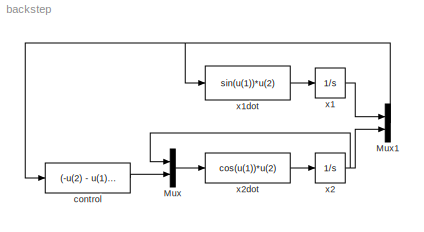
MODEL backstep
KIND model
BLOCK [Mux] Mux
  DisplayOption = bar
  Inputs = 2
  Ports = [2, 1]
  SID = 1
BLOCK [Mux] Mux1
  DisplayOption = bar
  Inputs = 2
  Ports = [2, 1]
  SID = 2
BLOCK [Fcn] control
  Expr = (-u(2) - u(1)*sin(u(1)) - sin(u(1))*u(2)*(sin(u(1))+u(1)*cos(u(1))))/cos(u(1))
  SID = 3
BLOCK [Integrator] x1
  InitialCondition = 1
  Ports = [1, 1]
  SID = 4
BLOCK [Fcn] x1dot
  Expr = sin(u(1))*u(2)
  SID = 5
BLOCK [Integrator] x2
  InitialCondition = 1
  Ports = [1, 1]
  SID = 6
BLOCK [Fcn] x2dot
  Expr = cos(u(1))*u(2)
  SID = 7
NET Mux1:1 -> control:1, x1dot:1
LINE Mux:1 -> x2dot:1
LINE control:1 -> Mux:2
LINE x1:1 -> Mux1:1
LINE x1dot:1 -> x1:1
NET x2:1 -> Mux1:2, Mux:1
LINE x2dot:1 -> x2:1
note: NET lines group one-source signal fan-out (src -> all destinations, sorted); 1:1 wires keep LINE
